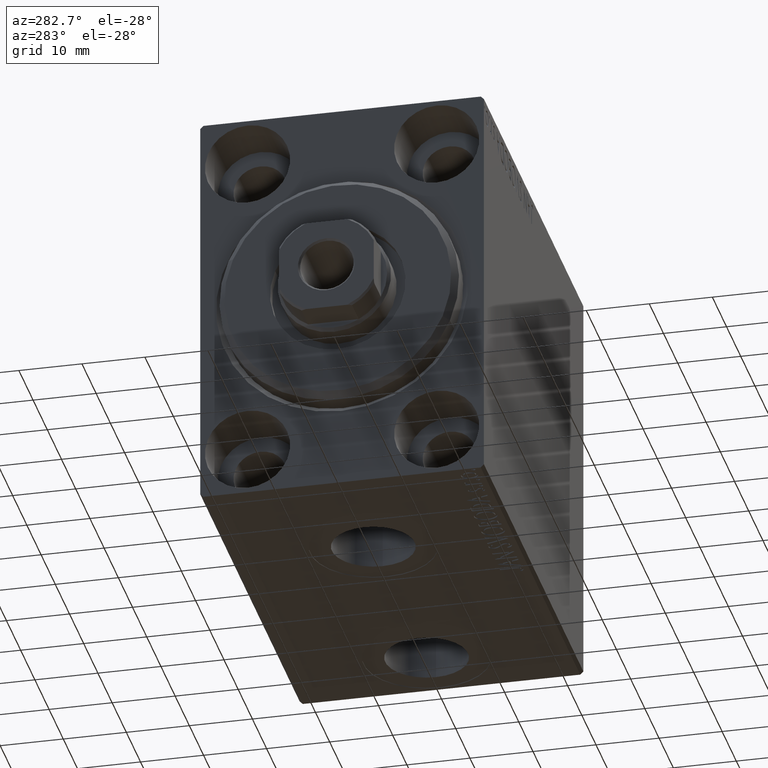
[diagram: clean part render]
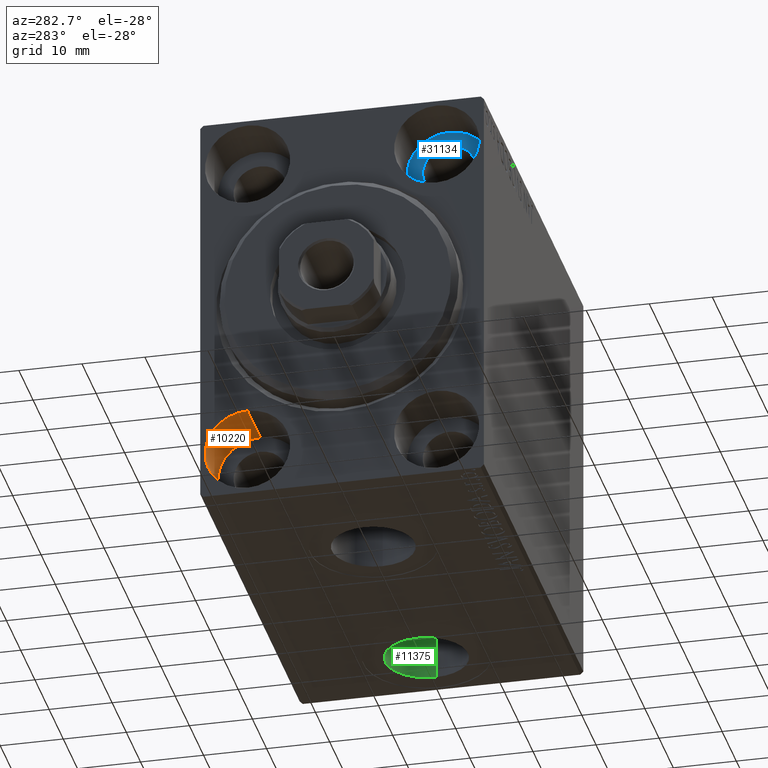
[diagram: same view with three faces highlighted in distinct colors, each labeled with its STEP entity id]
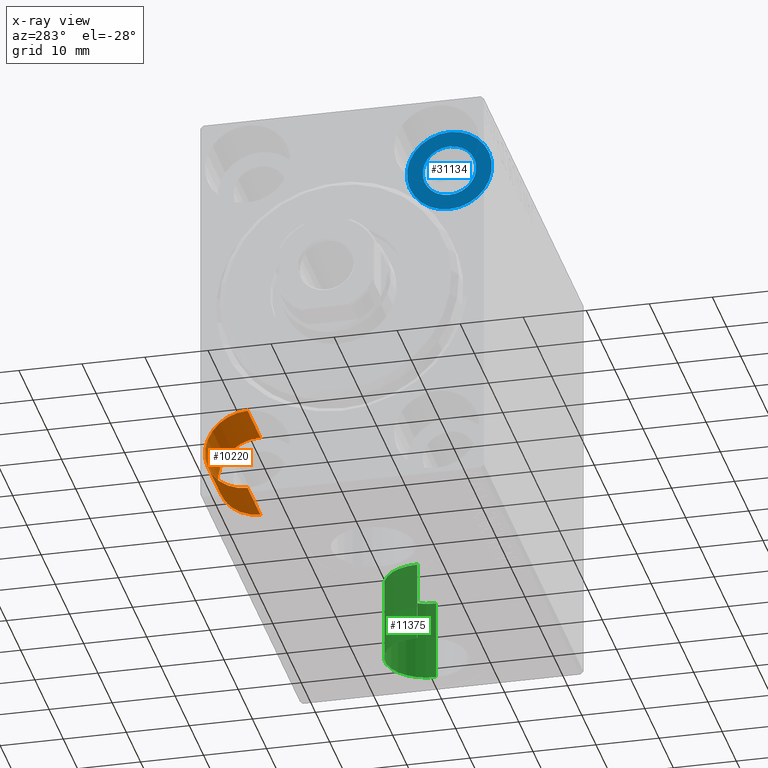
[diagram: x-ray of the same camera — body ghosted, the three highlighted faces saturated]
A machine part, auxiliary view with three faces highlighted in distinct colors.
The next image is the same camera in x-ray (body ghosted, the three faces saturated) — at least one of them is partly hidden behind the body in this view.
Their STEP definitions:

[orange] entity #10220 — the highlighted cylindrical surface (partial cylindrical patch) has radius 6.75 mm, axis along (-1, -0, -0).
#2452 = CIRCLE ( 'NONE', #22303, 6.749999999999999112 ) ;
#2509 = LINE ( 'NONE', #8731, #26307 ) ;
#3387 = DIRECTION ( 'NONE',  ( -1.000000000000000000, -0.000000000000000000, -0.000000000000000000 ) ) ;
#3740 = EDGE_CURVE ( 'NONE', #21822, #25015, #2509, .T. ) ;
#5133 = CARTESIAN_POINT ( 'NONE',  ( 0.000000000000000000, 14.99999999999999645, -25.00000000000000000 ) ) ;
#6603 = AXIS2_PLACEMENT_3D ( 'NONE', #22057, #34738, #28084 ) ;
#6687 = DIRECTION ( 'NONE',  ( -1.000000000000000000, 0.000000000000000000, 0.000000000000000000 ) ) ;
#8731 = CARTESIAN_POINT ( 'NONE',  ( 9.000000000000000000, 14.99999999999999645, -31.75000000000000000 ) ) ;
#9392 = ORIENTED_EDGE ( 'NONE', *, *, #9731, .F. ) ;
#9731 = EDGE_CURVE ( 'NONE', #39716, #21822, #15842, .T. ) ;
#10142 = ORIENTED_EDGE ( 'NONE', *, *, #3740, .F. ) ;
#10220 = ADVANCED_FACE ( 'NONE', ( #38076 ), #18738, .F. ) ;
#15842 = CIRCLE ( 'NONE', #35698, 6.749999999999999112 ) ;
#17708 = CARTESIAN_POINT ( 'NONE',  ( 0.000000000000000000, 14.99999999999999645, -31.75000000000000000 ) ) ;
#17887 = ORIENTED_EDGE ( 'NONE', *, *, #18503, .T. ) ;
#18336 = VERTEX_POINT ( 'NONE', #29018 ) ;
#18480 = CARTESIAN_POINT ( 'NONE',  ( 9.000000000000000000, 14.99999999999999645, -18.25000000000000355 ) ) ;
#18503 = EDGE_CURVE ( 'NONE', #18336, #25015, #2452, .T. ) ;
#18738 = CYLINDRICAL_SURFACE ( 'NONE', #6603, 6.749999999999999112 ) ;
#19850 = ORIENTED_EDGE ( 'NONE', *, *, #26365, .T. ) ;
#20014 = CARTESIAN_POINT ( 'NONE',  ( 9.000000000000000000, 14.99999999999999645, -25.00000000000000000 ) ) ;
#20937 = CARTESIAN_POINT ( 'NONE',  ( 9.000000000000000000, 14.99999999999999645, -18.25000000000000355 ) ) ;
#21585 = DIRECTION ( 'NONE',  ( 0.000000000000000000, 0.000000000000000000, 1.000000000000000000 ) ) ;
#21822 = VERTEX_POINT ( 'NONE', #42759 ) ;
#22057 = CARTESIAN_POINT ( 'NONE',  ( 9.000000000000000000, 14.99999999999999645, -25.00000000000000000 ) ) ;
#22282 = DIRECTION ( 'NONE',  ( -1.000000000000000000, -0.000000000000000000, -0.000000000000000000 ) ) ;
#22303 = AXIS2_PLACEMENT_3D ( 'NONE', #5133, #32035, #21585 ) ;
#25015 = VERTEX_POINT ( 'NONE', #17708 ) ;
#26307 = VECTOR ( 'NONE', #22282, 1000.000000000000000 ) ;
#26365 = EDGE_CURVE ( 'NONE', #39716, #18336, #40736, .T. ) ;
#28084 = DIRECTION ( 'NONE',  ( 0.000000000000000000, 0.000000000000000000, 1.000000000000000000 ) ) ;
#28235 = DIRECTION ( 'NONE',  ( 0.000000000000000000, 0.000000000000000000, 1.000000000000000000 ) ) ;
#29018 = CARTESIAN_POINT ( 'NONE',  ( 0.000000000000000000, 14.99999999999999645, -18.25000000000000355 ) ) ;
#32035 = DIRECTION ( 'NONE',  ( -1.000000000000000000, 0.000000000000000000, 0.000000000000000000 ) ) ;
#34738 = DIRECTION ( 'NONE',  ( -1.000000000000000000, -0.000000000000000000, -0.000000000000000000 ) ) ;
#35698 = AXIS2_PLACEMENT_3D ( 'NONE', #20014, #6687, #28235 ) ;
#38076 = FACE_OUTER_BOUND ( 'NONE', #39651, .T. ) ;
#39651 = EDGE_LOOP ( 'NONE', ( #10142, #9392, #19850, #17887 ) ) ;
#39716 = VERTEX_POINT ( 'NONE', #18480 ) ;
#40736 = LINE ( 'NONE', #20937, #43518 ) ;
#42759 = CARTESIAN_POINT ( 'NONE',  ( 9.000000000000000000, 14.99999999999999645, -31.75000000000000000 ) ) ;
#43518 = VECTOR ( 'NONE', #3387, 1000.000000000000000 ) ;

[blue] entity #31134 — the highlighted planar face has unit normal (-1, 0, 0).
#2383 = DIRECTION ( 'NONE',  ( 0.000000000000000000, 0.000000000000000000, 1.000000000000000000 ) ) ;
#3002 = VERTEX_POINT ( 'NONE', #20449 ) ;
#3902 = ORIENTED_EDGE ( 'NONE', *, *, #9087, .F. ) ;
#4549 = DIRECTION ( 'NONE',  ( 0.000000000000000000, 0.000000000000000000, 1.000000000000000000 ) ) ;
#5151 = AXIS2_PLACEMENT_3D ( 'NONE', #33198, #40071, #9639 ) ;
#5183 = AXIS2_PLACEMENT_3D ( 'NONE', #43596, #19792, #40246 ) ;
#6318 = VERTEX_POINT ( 'NONE', #28884 ) ;
#7357 = VERTEX_POINT ( 'NONE', #36670 ) ;
#7511 = DIRECTION ( 'NONE',  ( -1.000000000000000000, 0.000000000000000000, 0.000000000000000000 ) ) ;
#9087 = EDGE_CURVE ( 'NONE', #7357, #3002, #24301, .T. ) ;
#9639 = DIRECTION ( 'NONE',  ( 0.000000000000000000, 0.000000000000000000, 1.000000000000000000 ) ) ;
#10187 = PLANE ( 'NONE',  #37246 ) ;
#10825 = CIRCLE ( 'NONE', #15064, 6.749999999999999112 ) ;
#15064 = AXIS2_PLACEMENT_3D ( 'NONE', #34990, #31209, #4549 ) ;
#16851 = FACE_OUTER_BOUND ( 'NONE', #20349, .T. ) ;
#17128 = ORIENTED_EDGE ( 'NONE', *, *, #26532, .F. ) ;
#19792 = DIRECTION ( 'NONE',  ( -1.000000000000000000, 0.000000000000000000, 0.000000000000000000 ) ) ;
#20349 = EDGE_LOOP ( 'NONE', ( #21115, #23707 ) ) ;
#20449 = CARTESIAN_POINT ( 'NONE',  ( 9.000000000000001776, -14.99999999999999645, 29.25000000000000000 ) ) ;
#20630 = CARTESIAN_POINT ( 'NONE',  ( 9.000000000000000000, -14.99999999999999645, 18.25000000000000355 ) ) ;
#21115 = ORIENTED_EDGE ( 'NONE', *, *, #24961, .T. ) ;
#23707 = ORIENTED_EDGE ( 'NONE', *, *, #32043, .T. ) ;
#24301 = CIRCLE ( 'NONE', #5151, 4.249999999999996447 ) ;
#24961 = EDGE_CURVE ( 'NONE', #6318, #39182, #10825, .T. ) ;
#26532 = EDGE_CURVE ( 'NONE', #3002, #7357, #42827, .T. ) ;
#27293 = FACE_BOUND ( 'NONE', #34902, .T. ) ;
#27724 = DIRECTION ( 'NONE',  ( 0.000000000000000000, 0.000000000000000000, 1.000000000000000000 ) ) ;
#28884 = CARTESIAN_POINT ( 'NONE',  ( 9.000000000000000000, -14.99999999999999645, 31.75000000000000000 ) ) ;
#29461 = AXIS2_PLACEMENT_3D ( 'NONE', #43288, #43078, #2383 ) ;
#30151 = CIRCLE ( 'NONE', #29461, 6.749999999999999112 ) ;
#31134 = ADVANCED_FACE ( 'NONE', ( #27293, #16851 ), #10187, .T. ) ;
#31209 = DIRECTION ( 'NONE',  ( -1.000000000000000000, 0.000000000000000000, 0.000000000000000000 ) ) ;
#32043 = EDGE_CURVE ( 'NONE', #39182, #6318, #30151, .T. ) ;
#33198 = CARTESIAN_POINT ( 'NONE',  ( 9.000000000000001776, -14.99999999999999645, 25.00000000000000000 ) ) ;
#34902 = EDGE_LOOP ( 'NONE', ( #17128, #3902 ) ) ;
#34990 = CARTESIAN_POINT ( 'NONE',  ( 9.000000000000000000, -14.99999999999999645, 25.00000000000000000 ) ) ;
#36670 = CARTESIAN_POINT ( 'NONE',  ( 9.000000000000001776, -14.99999999999999645, 20.75000000000000355 ) ) ;
#37246 = AXIS2_PLACEMENT_3D ( 'NONE', #37294, #7511, #27724 ) ;
#37294 = CARTESIAN_POINT ( 'NONE',  ( 9.000000000000000000, 0.000000000000000000, 0.000000000000000000 ) ) ;
#39182 = VERTEX_POINT ( 'NONE', #20630 ) ;
#40071 = DIRECTION ( 'NONE',  ( -1.000000000000000000, 0.000000000000000000, 0.000000000000000000 ) ) ;
#40246 = DIRECTION ( 'NONE',  ( 0.000000000000000000, 0.000000000000000000, 1.000000000000000000 ) ) ;
#42827 = CIRCLE ( 'NONE', #5183, 4.249999999999996447 ) ;
#43078 = DIRECTION ( 'NONE',  ( -1.000000000000000000, 0.000000000000000000, 0.000000000000000000 ) ) ;
#43288 = CARTESIAN_POINT ( 'NONE',  ( 9.000000000000000000, -14.99999999999999645, 25.00000000000000000 ) ) ;
#43596 = CARTESIAN_POINT ( 'NONE',  ( 9.000000000000001776, -14.99999999999999645, 25.00000000000000000 ) ) ;

[green] entity #11375 — the highlighted cylindrical surface (partial cylindrical patch) has radius 6.58 mm, axis along (-0, -0, -1).
#1569 = FACE_OUTER_BOUND ( 'NONE', #29154, .T. ) ;
#2802 = VERTEX_POINT ( 'NONE', #18076 ) ;
#3266 = AXIS2_PLACEMENT_3D ( 'NONE', #13706, #10162, #16179 ) ;
#5716 = DIRECTION ( 'NONE',  ( -0.000000000000000000, -0.000000000000000000, -1.000000000000000000 ) ) ;
#6905 = LINE ( 'NONE', #44030, #22207 ) ;
#9688 = EDGE_CURVE ( 'NONE', #37299, #13013, #6905, .T. ) ;
#10162 = DIRECTION ( 'NONE',  ( 0.000000000000000000, 0.000000000000000000, -1.000000000000000000 ) ) ;
#10822 = EDGE_CURVE ( 'NONE', #14736, #2802, #41303, .T. ) ;
#10854 = CARTESIAN_POINT ( 'NONE',  ( 66.07999999999999829, -5.850147353426744223E-15, -19.50000000000000355 ) ) ;
#11021 = CARTESIAN_POINT ( 'NONE',  ( 52.92000000000000171, -6.655964947265702476E-15, -32.40000000000000568 ) ) ;
#11375 = ADVANCED_FACE ( 'NONE', ( #1569 ), #28037, .F. ) ;
#12014 = DIRECTION ( 'NONE',  ( -1.000000000000000000, 0.000000000000000000, 0.000000000000000000 ) ) ;
#12093 = CARTESIAN_POINT ( 'NONE',  ( 66.07999999999999829, -5.850147353426743435E-15, -19.50000000000000355 ) ) ;
#13013 = VERTEX_POINT ( 'NONE', #11021 ) ;
#13706 = CARTESIAN_POINT ( 'NONE',  ( 59.50000000000000711, -6.655964947265702476E-15, -32.40000000000000568 ) ) ;
#14736 = VERTEX_POINT ( 'NONE', #12093 ) ;
#15496 = ORIENTED_EDGE ( 'NONE', *, *, #9688, .T. ) ;
#16179 = DIRECTION ( 'NONE',  ( -1.000000000000000000, 0.000000000000000000, 0.000000000000000000 ) ) ;
#16551 = CARTESIAN_POINT ( 'NONE',  ( 59.50000000000000711, -6.655964947265702476E-15, -19.50000000000000355 ) ) ;
#18076 = CARTESIAN_POINT ( 'NONE',  ( 66.07999999999999829, -5.850147353426743435E-15, -32.40000000000000568 ) ) ;
#18461 = EDGE_CURVE ( 'NONE', #37299, #14736, #30115, .T. ) ;
#22207 = VECTOR ( 'NONE', #40689, 1000.000000000000000 ) ;
#23434 = DIRECTION ( 'NONE',  ( -1.000000000000000000, 0.000000000000000000, 0.000000000000000000 ) ) ;
#24368 = VECTOR ( 'NONE', #5716, 1000.000000000000000 ) ;
#26779 = DIRECTION ( 'NONE',  ( 0.000000000000000000, 0.000000000000000000, -1.000000000000000000 ) ) ;
#27404 = CIRCLE ( 'NONE', #3266, 6.580000000000002736 ) ;
#27405 = ORIENTED_EDGE ( 'NONE', *, *, #40138, .T. ) ;
#28037 = CYLINDRICAL_SURFACE ( 'NONE', #33604, 6.580000000000002736 ) ;
#28912 = CARTESIAN_POINT ( 'NONE',  ( 59.50000000000000711, -6.655964947265702476E-15, -19.50000000000000355 ) ) ;
#29154 = EDGE_LOOP ( 'NONE', ( #41326, #40847, #15496, #27405 ) ) ;
#30115 = CIRCLE ( 'NONE', #42220, 6.580000000000002736 ) ;
#32246 = DIRECTION ( 'NONE',  ( -0.000000000000000000, -0.000000000000000000, -1.000000000000000000 ) ) ;
#33013 = CARTESIAN_POINT ( 'NONE',  ( 52.92000000000000171, -6.655964947265702476E-15, -19.50000000000000355 ) ) ;
#33604 = AXIS2_PLACEMENT_3D ( 'NONE', #28912, #32246, #12014 ) ;
#37299 = VERTEX_POINT ( 'NONE', #33013 ) ;
#40138 = EDGE_CURVE ( 'NONE', #13013, #2802, #27404, .T. ) ;
#40689 = DIRECTION ( 'NONE',  ( -0.000000000000000000, -0.000000000000000000, -1.000000000000000000 ) ) ;
#40847 = ORIENTED_EDGE ( 'NONE', *, *, #18461, .F. ) ;
#41303 = LINE ( 'NONE', #10854, #24368 ) ;
#41326 = ORIENTED_EDGE ( 'NONE', *, *, #10822, .F. ) ;
#42220 = AXIS2_PLACEMENT_3D ( 'NONE', #16551, #26779, #23434 ) ;
#44030 = CARTESIAN_POINT ( 'NONE',  ( 52.92000000000000171, -6.655964947265702476E-15, -19.50000000000000355 ) ) ;